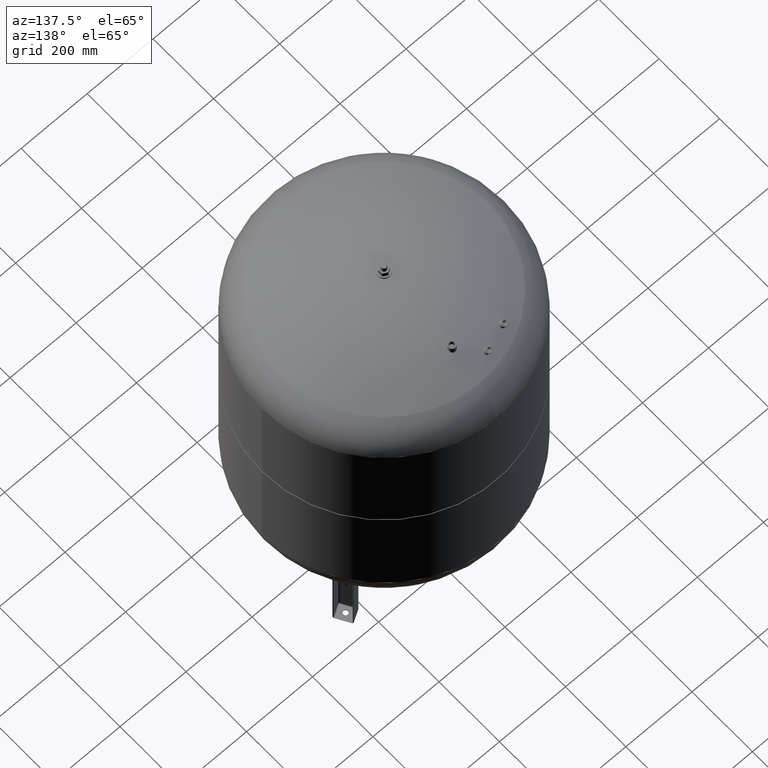
[diagram: clean part render]
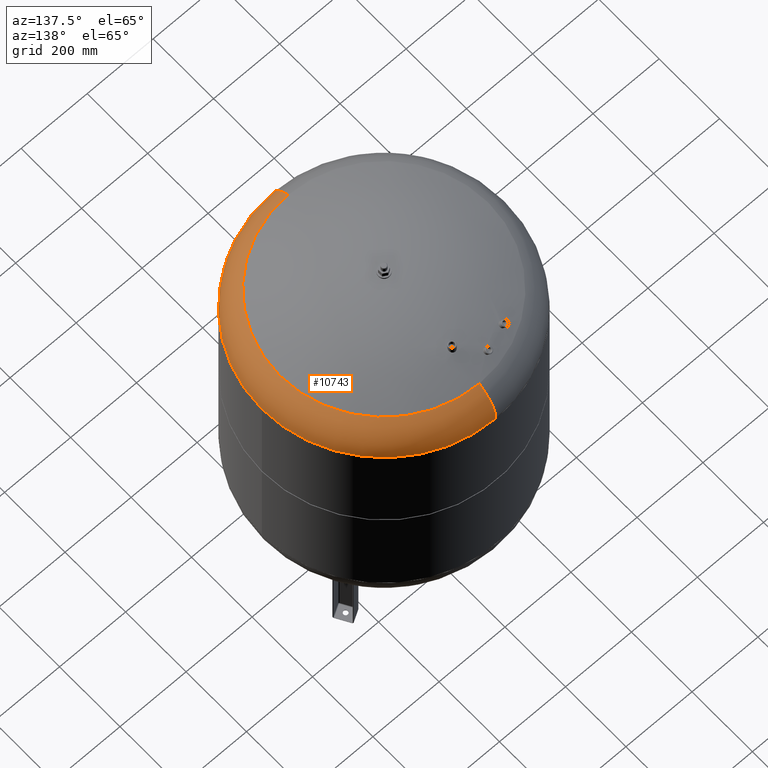
[diagram: same view with one face highlighted and labeled with its STEP entity id]
A machine part, auxiliary view. The second image highlights one B-rep face of the part: STEP entity #10743.
In plain terms, the highlighted toroidal blend (fillet) surface has major radius 254.5 mm and minor (blend) radius 115.5 mm.
Its self-contained STEP definition (entity closure, byte-faithful):
#10648=CARTESIAN_POINT('',(370.0,-4.531193E-014,1031.206120388130300));
#10649=VERTEX_POINT('',#10648);
#10673=CARTESIAN_POINT('',(6.750178E-014,370.0,1031.206120388130300));
#10674=VERTEX_POINT('',#10673);
#10682=CARTESIAN_POINT('',(-2.312058E-014,3.155444E-030,1031.206120388130600));
#10683=DIRECTION('',(0.0,0.0,-1.0));
#10684=DIRECTION('',(1.0,0.0,0.0));
#10685=AXIS2_PLACEMENT_3D('',#10682,#10683,#10684);
#10686=CIRCLE('',#10685,370.0);
#10687=EDGE_CURVE('',#10674,#10649,#10686,.T.);
#10692=CARTESIAN_POINT('',(-2.312058E-014,0.0,1031.206120388130300));
#10693=DIRECTION('',(-1.224647E-016,2.465190E-032,-1.0));
#10694=DIRECTION('',(0.0,-1.0,0.0));
#10695=AXIS2_PLACEMENT_3D('',#10692,#10693,#10694);
#10696=TOROIDAL_SURFACE('',#10695,254.500000000000030,115.500000000000000);
#10697=CARTESIAN_POINT('',(-6.843251E-014,-370.0,1031.206120388130300));
#10698=VERTEX_POINT('',#10697);
#10699=CARTESIAN_POINT('',(-4.983290E-014,-315.931034482758610,1129.014494274920300));
#10700=VERTEX_POINT('',#10699);
#10701=CARTESIAN_POINT('',(-5.428784E-014,-254.500000000000030,1031.206120388130300));
#10702=DIRECTION('',(-1.0,0.0,0.0));
#10703=DIRECTION('',(0.0,-1.0,0.0));
#10704=AXIS2_PLACEMENT_3D('',#10701,#10702,#10703);
#10705=CIRCLE('',#10704,115.500000000000000);
#10706=EDGE_CURVE('',#10698,#10700,#10705,.T.);
#10707=ORIENTED_EDGE('',*,*,#10706,.F.);
#10708=CARTESIAN_POINT('',(-2.312058E-014,3.155444E-030,1031.206120388130600));
#10709=DIRECTION('',(0.0,0.0,-1.0));
#10710=DIRECTION('',(1.0,0.0,0.0));
#10711=AXIS2_PLACEMENT_3D('',#10708,#10709,#10710);
#10712=CIRCLE('',#10711,370.0);
#10713=EDGE_CURVE('',#10649,#10698,#10712,.T.);
#10714=ORIENTED_EDGE('',*,*,#10713,.F.);
#10715=ORIENTED_EDGE('',*,*,#10687,.F.);
#10716=CARTESIAN_POINT('',(6.623700E-014,315.931034482758610,1129.014494274920300));
#10717=VERTEX_POINT('',#10716);
#10718=CARTESIAN_POINT('',(3.921291E-014,254.500000000000030,1031.206120388130300));
#10719=DIRECTION('',(1.0,0.0,0.0));
#10720=DIRECTION('',(0.0,1.0,0.0));
#10721=AXIS2_PLACEMENT_3D('',#10718,#10719,#10720);
#10722=CIRCLE('',#10721,115.500000000000000);
#10723=EDGE_CURVE('',#10674,#10717,#10722,.T.);
#10724=ORIENTED_EDGE('',*,*,#10723,.T.);
#10725=CARTESIAN_POINT('',(315.931034482758610,-3.869039E-014,1129.014494274920500));
#10726=VERTEX_POINT('',#10725);
#10727=CARTESIAN_POINT('',(-1.114251E-014,1.577722E-030,1129.014494274920500));
#10728=DIRECTION('',(0.0,0.0,-1.0));
#10729=DIRECTION('',(1.0,0.0,0.0));
#10730=AXIS2_PLACEMENT_3D('',#10727,#10728,#10729);
#10731=CIRCLE('',#10730,315.931034482758610);
#10732=EDGE_CURVE('',#10717,#10726,#10731,.T.);
#10733=ORIENTED_EDGE('',*,*,#10732,.T.);
#10734=CARTESIAN_POINT('',(-1.114251E-014,1.577722E-030,1129.014494274920500));
#10735=DIRECTION('',(0.0,0.0,-1.0));
#10736=DIRECTION('',(1.0,0.0,0.0));
#10737=AXIS2_PLACEMENT_3D('',#10734,#10735,#10736);
#10738=CIRCLE('',#10737,315.931034482758610);
#10739=EDGE_CURVE('',#10726,#10700,#10738,.T.);
#10740=ORIENTED_EDGE('',*,*,#10739,.T.);
#10741=EDGE_LOOP('',(#10707,#10714,#10715,#10724,#10733,#10740));
#10742=FACE_OUTER_BOUND('',#10741,.T.);
#10743=ADVANCED_FACE('',(#10742),#10696,.T.);